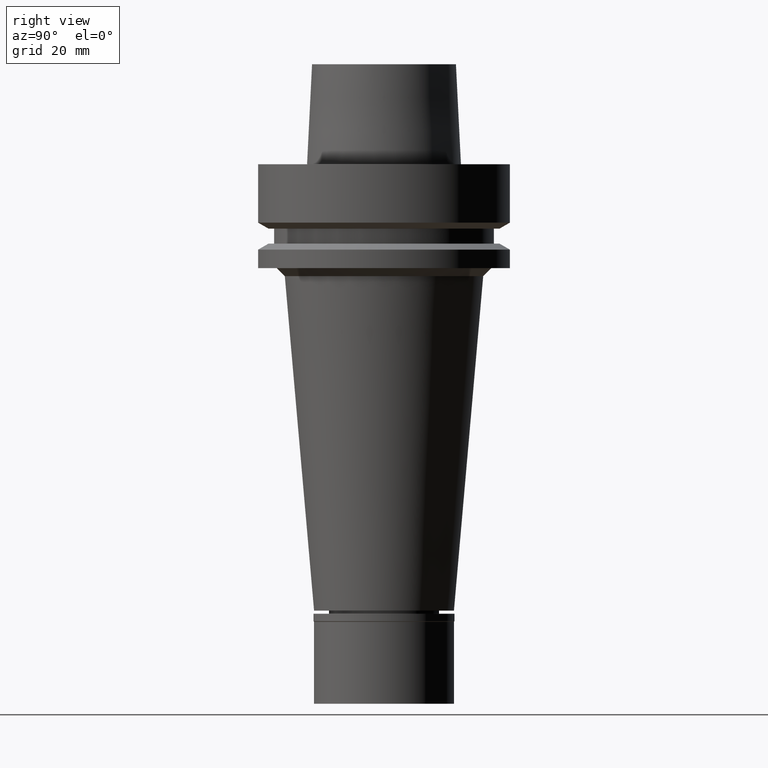
[diagram: clean part render]
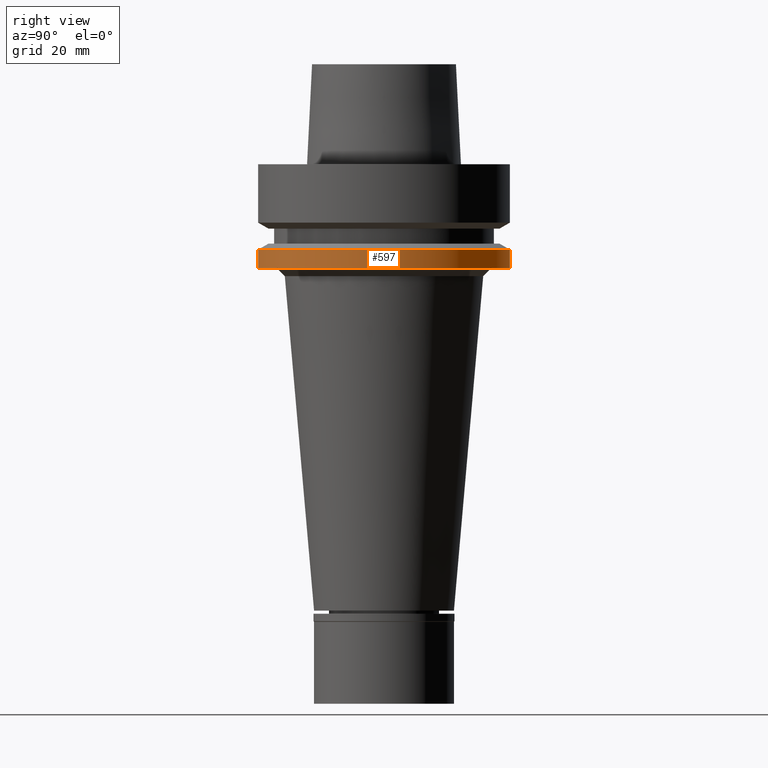
[diagram: same view with one face highlighted and labeled with its STEP entity id]
A machine part, right view. The second image highlights one B-rep face of the part: STEP entity #597.
In plain terms, the highlighted cylindrical surface (partial cylindrical patch) has radius 31.5 mm, axis along (0, 0, 1).
Its self-contained STEP definition (entity closure, byte-faithful):
#79 = DIRECTION ( 'NONE',  ( 0.0000000000000000000, 0.0000000000000000000, -1.000000000000000000 ) ) ;
#155 = CYLINDRICAL_SURFACE ( 'NONE', #609, 31.50000000000000000 ) ;
#182 = CIRCLE ( 'NONE', #2861, 31.50000000000000000 ) ;
#350 = DIRECTION ( 'NONE',  ( 0.0000000000000000000, 0.0000000000000000000, 1.000000000000000000 ) ) ;
#390 = CARTESIAN_POINT ( 'NONE',  ( 0.0000000000000000000, 0.0000000000000000000, -135.9650000000000034 ) ) ;
#496 = ORIENTED_EDGE ( 'NONE', *, *, #2784, .F. ) ;
#524 = CARTESIAN_POINT ( 'NONE',  ( 0.0000000000000000000, 0.0000000000000000000, -21.37749907476000288 ) ) ;
#557 = AXIS2_PLACEMENT_3D ( 'NONE', #524, #79, #1407 ) ;
#597 = ADVANCED_FACE ( 'NONE', ( #1459 ), #155, .T. ) ;
#609 = AXIS2_PLACEMENT_3D ( 'NONE', #390, #350, #2814 ) ;
#774 = CARTESIAN_POINT ( 'NONE',  ( 0.0000000000000000000, 31.50000000000000000, -21.37749907476000288 ) ) ;
#886 = VERTEX_POINT ( 'NONE', #1724 ) ;
#899 = EDGE_CURVE ( 'NONE', #886, #2289, #2039, .T. ) ;
#1024 = EDGE_LOOP ( 'NONE', ( #1956, #2282, #1161, #496 ) ) ;
#1064 = CIRCLE ( 'NONE', #557, 31.50000000000000000 ) ;
#1123 = CARTESIAN_POINT ( 'NONE',  ( 0.0000000000000000000, 31.50000000000000000, -26.00000000000000000 ) ) ;
#1161 = ORIENTED_EDGE ( 'NONE', *, *, #1516, .T. ) ;
#1233 = CARTESIAN_POINT ( 'NONE',  ( 0.0000000000000000000, -31.50000000000000000, -26.00000000000000000 ) ) ;
#1407 = DIRECTION ( 'NONE',  ( 0.0000000000000000000, 1.000000000000000000, 0.0000000000000000000 ) ) ;
#1459 = FACE_OUTER_BOUND ( 'NONE', #1024, .T. ) ;
#1516 = EDGE_CURVE ( 'NONE', #2289, #1842, #182, .T. ) ;
#1605 = CARTESIAN_POINT ( 'NONE',  ( 0.0000000000000000000, -31.50000000000000000, -21.37749907476000288 ) ) ;
#1644 = CARTESIAN_POINT ( 'NONE',  ( 0.0000000000000000000, 0.0000000000000000000, -26.00000000000000000 ) ) ;
#1654 = LINE ( 'NONE', #774, #1929 ) ;
#1724 = CARTESIAN_POINT ( 'NONE',  ( 0.0000000000000000000, -31.50000000000000000, -21.37749907476000288 ) ) ;
#1805 = VECTOR ( 'NONE', #2054, 1000.000000000000000 ) ;
#1842 = VERTEX_POINT ( 'NONE', #1123 ) ;
#1911 = DIRECTION ( 'NONE',  ( 0.0000000000000000000, -1.000000000000000000, 0.0000000000000000000 ) ) ;
#1929 = VECTOR ( 'NONE', #2768, 1000.000000000000000 ) ;
#1956 = ORIENTED_EDGE ( 'NONE', *, *, #2055, .T. ) ;
#2039 = LINE ( 'NONE', #1605, #1805 ) ;
#2054 = DIRECTION ( 'NONE',  ( 0.0000000000000000000, 1.306568316943000015E-13, -1.000000000000000000 ) ) ;
#2055 = EDGE_CURVE ( 'NONE', #2846, #886, #1064, .T. ) ;
#2282 = ORIENTED_EDGE ( 'NONE', *, *, #899, .T. ) ;
#2289 = VERTEX_POINT ( 'NONE', #1233 ) ;
#2347 = CARTESIAN_POINT ( 'NONE',  ( 0.0000000000000000000, 31.50000000000000000, -21.37749907476000288 ) ) ;
#2526 = DIRECTION ( 'NONE',  ( 0.0000000000000000000, 0.0000000000000000000, 1.000000000000000000 ) ) ;
#2768 = DIRECTION ( 'NONE',  ( 0.0000000000000000000, -1.306568316943000015E-13, -1.000000000000000000 ) ) ;
#2784 = EDGE_CURVE ( 'NONE', #2846, #1842, #1654, .T. ) ;
#2814 = DIRECTION ( 'NONE',  ( 0.0000000000000000000, 1.000000000000000000, 0.0000000000000000000 ) ) ;
#2846 = VERTEX_POINT ( 'NONE', #2347 ) ;
#2861 = AXIS2_PLACEMENT_3D ( 'NONE', #1644, #2526, #1911 ) ;